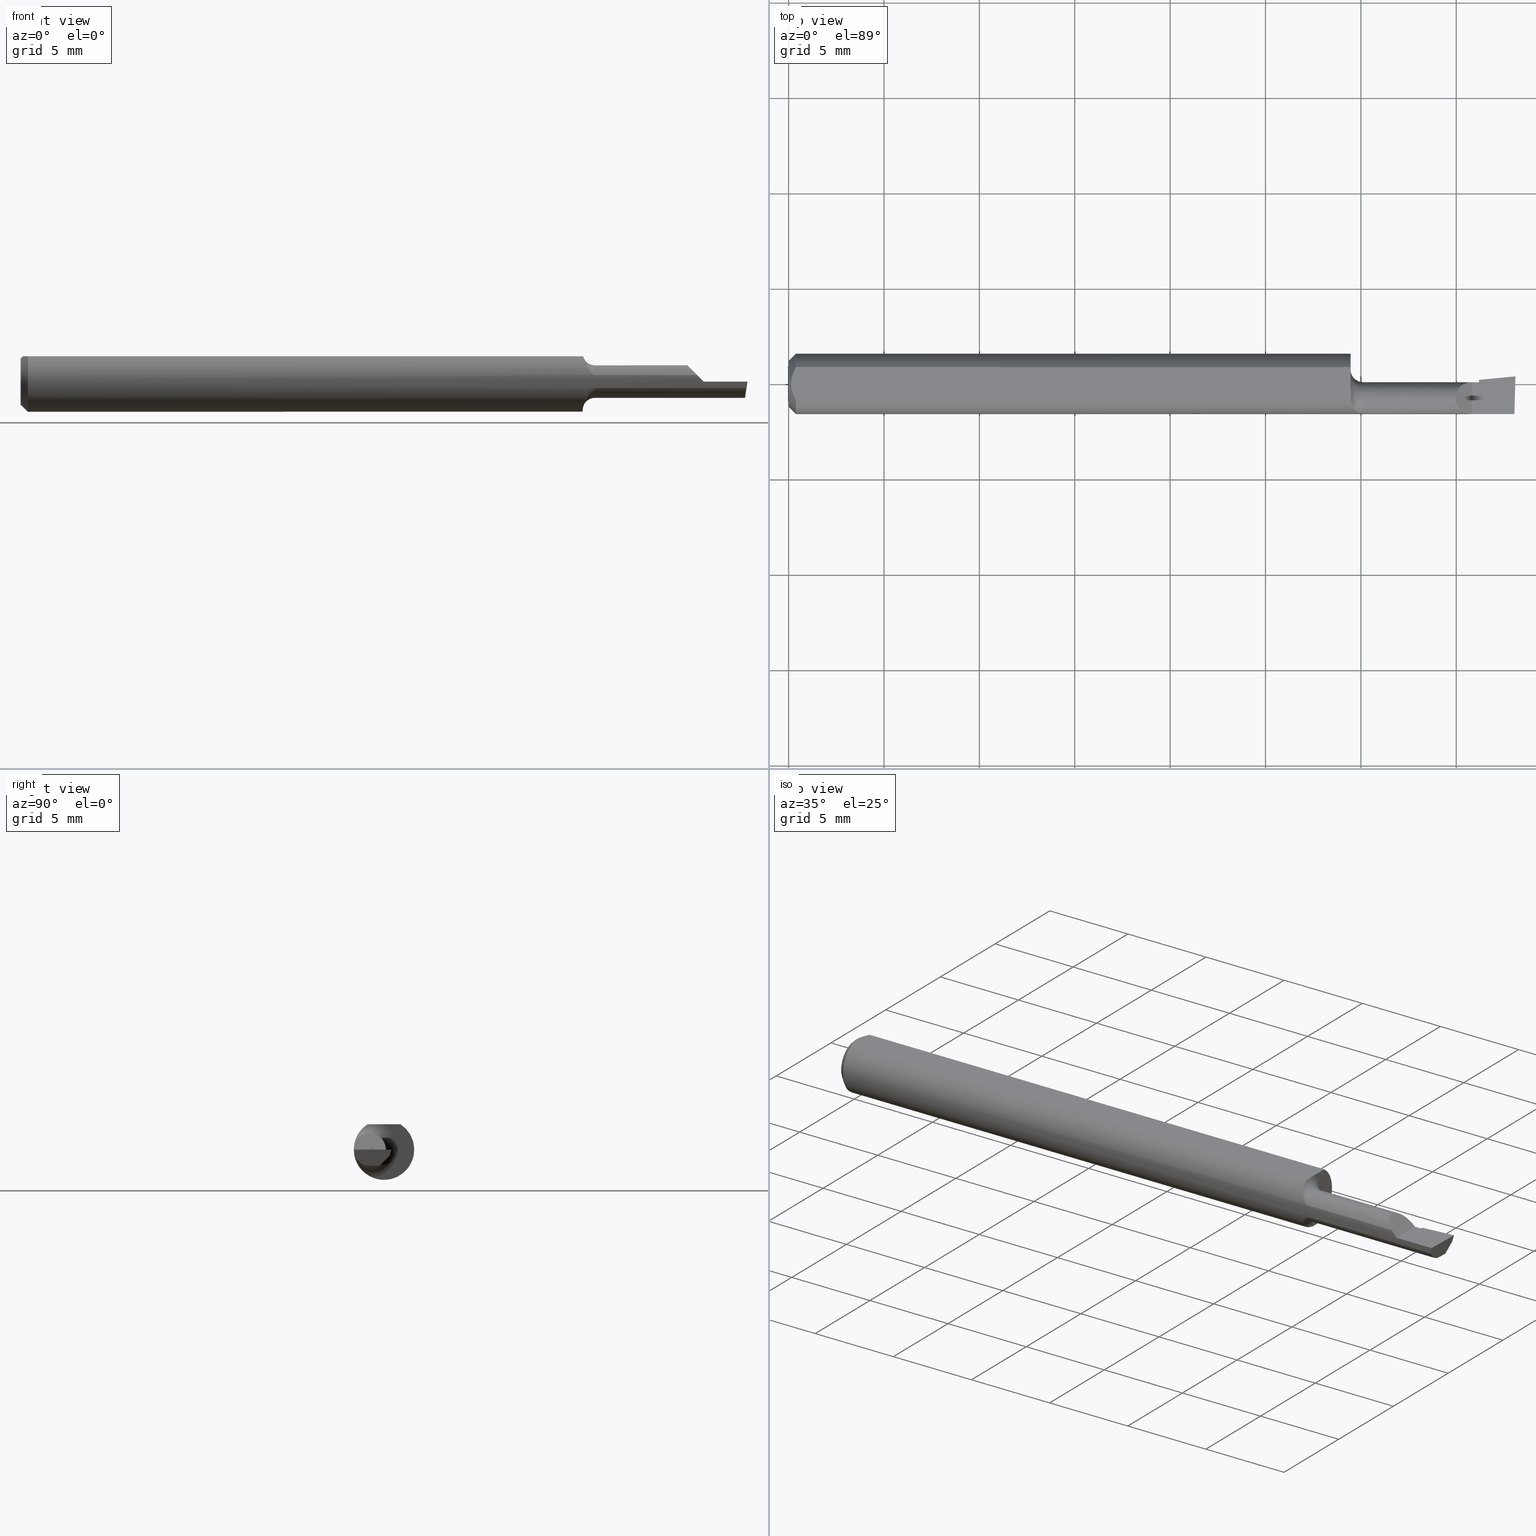
[diagram: canonical four-view strip — front | top / right | iso, engineering-drawing reading convention]
A machine part, canonical four-view strip (front | top / right | iso — engineering-drawing reading convention). The complete STEP part file that produces these views, byte-faithful:
ISO-10303-21;
HEADER;
FILE_DESCRIPTION (( 'STEP AP214' ),
    '1' );
FILE_NAME ('B080300.STEP',
    '2019-07-25T16:56:34',
    ( '' ),
    ( '' ),
    'SwSTEP 2.0',
    'SolidWorks 2018',
    '' );
FILE_SCHEMA (( 'AUTOMOTIVE_DESIGN' ));
ENDSEC;

DATA;
#1 = CARTESIAN_POINT ( 'NONE',  ( 1.494308349198229857, -0.04386801266094333962, -0.03364999999999998548 ) ) ;
#2 = CIRCLE ( 'NONE', #25, 0.06235000000000000264 ) ;
#3 = CARTESIAN_POINT ( 'NONE',  ( 1.500000000000000444, -0.02999999999999999889, -0.03365000000000000629 ) ) ;
#4 = CARTESIAN_POINT ( 'NONE',  ( 0.004999999999999268051, 0.005945714695019511074, 0.05235000000000000070 ) ) ;
#5 = CARTESIAN_POINT ( 'NONE',  ( 1.353543612694569021, -0.04237893387051760996, 0.05645638730543046241 ) ) ;
#6 = VERTEX_POINT ( 'NONE', #537 ) ;
#7 = DIRECTION ( 'NONE',  ( -2.845674993400274186E-18, -1.000000000000000000, 0.0000000000000000000 ) ) ;
#8 = CARTESIAN_POINT ( 'NONE',  ( 1.409999999999999920, -0.06235000000000005121, 1.102182119232617911E-17 ) ) ;
#9 = EDGE_LOOP ( 'NONE', ( #46, #491, #150, #515 ) ) ;
#10 = ORIENTED_EDGE ( 'NONE', *, *, #158, .T. ) ;
#11 = CARTESIAN_POINT ( 'NONE',  ( 1.305000000000000160, -0.06092000000000000887, 0.01327690099383130144 ) ) ;
#12 = CARTESIAN_POINT ( 'NONE',  ( 1.409999999999999920, -0.06235000000000005121, 1.102182119232617911E-17 ) ) ;
#13 = EDGE_CURVE ( 'NONE', #6, #77, #555, .T. ) ;
#14 = DIRECTION ( 'NONE',  ( 0.0000000000000000000, 0.0000000000000000000, 1.000000000000000000 ) ) ;
#15 = EDGE_LOOP ( 'NONE', ( #380, #215, #108, #413, #151 ) ) ;
#16 = LINE ( 'NONE', #90, #44 ) ;
#17 = B_SPLINE_CURVE_WITH_KNOTS ( 'NONE', 3,
 ( #121, #205, #505, #247, #346, #292, #565, #252, #386, #341, #26, #469, #156, #383 ),
 .UNSPECIFIED., .F., .F.,
 ( 4, 2, 2, 2, 2, 2, 4 ),
 ( 1.965909345844058709E-07, 0.0001114396223726220005, 0.0002226826538106595904, 0.0004451687166867345532, 0.0008901408424388843705, 0.001335112968191033917, 0.001780085093943183788 ),
 .UNSPECIFIED. ) ;
#18 = EDGE_LOOP ( 'NONE', ( #248, #474, #297, #28, #260, #115, #554, #278 ) ) ;
#19 = CARTESIAN_POINT ( 'NONE',  ( 1.180680476387446554, -0.06051938329563263941, 0.01501179429902413029 ) ) ;
#20 = EDGE_CURVE ( 'NONE', #418, #94, #332, .T. ) ;
#21 = ADVANCED_FACE ( 'NONE', ( #182 ), #522, .T. ) ;
#22 =( NAMED_UNIT ( * ) PLANE_ANGLE_UNIT ( ) SI_UNIT ( $, .RADIAN. ) );
#23 = VECTOR ( 'NONE', #494, 39.37007874015748143 ) ;
#24 = CARTESIAN_POINT ( 'NONE',  ( 1.421744639163020851, 0.004121984496277333009, -0.01299999999999999767 ) ) ;
#25 = AXIS2_PLACEMENT_3D ( 'NONE', #93, #449, #232 ) ;
#26 = CARTESIAN_POINT ( 'NONE',  ( 1.162355689262079883, -0.04203237437577732327, -0.04640179157007805200 ) ) ;
#27 = CARTESIAN_POINT ( 'NONE',  ( 1.185000000000000275, -0.06092000000000005050, 0.01327690099383117134 ) ) ;
#28 = ORIENTED_EDGE ( 'NONE', *, *, #80, .T. ) ;
#29 = DIMENSIONAL_EXPONENTS ( 1.000000000000000000, 0.0000000000000000000, 0.0000000000000000000, 0.0000000000000000000, 0.0000000000000000000, 0.0000000000000000000, 0.0000000000000000000 ) ;
#30 = CARTESIAN_POINT ( 'NONE',  ( 1.185000000000000275, -0.06092000000000005744, -0.01327690099383113838 ) ) ;
#31 = CARTESIAN_POINT ( 'NONE',  ( 0.0000000000000000000, 0.0000000000000000000, 0.0000000000000000000 ) ) ;
#32 = VERTEX_POINT ( 'NONE', #301 ) ;
#33 = CARTESIAN_POINT ( 'NONE',  ( 1.500000000000000222, 0.1123499999999999915, 0.05234999999999998682 ) ) ;
#34 = CARTESIAN_POINT ( 'NONE',  ( 0.01500000000000000465, 0.0000000000000000000, 0.0000000000000000000 ) ) ;
#35 = DIRECTION ( 'NONE',  ( -2.845674993400274571E-18, -1.000000000000000000, 7.598598113218357399E-17 ) ) ;
#36 = VERTEX_POINT ( 'NONE', #30 ) ;
#37 = AXIS2_PLACEMENT_3D ( 'NONE', #268, #408, #234 ) ;
#38 = AXIS2_PLACEMENT_3D ( 'NONE', #31, #123, #168 ) ;
#39 = DIRECTION ( 'NONE',  ( -1.000000000000000000, 2.845674993400274571E-18, -0.0000000000000000000 ) ) ;
#40 = DIRECTION ( 'NONE',  ( -1.000000000000000000, -0.0000000000000000000, -0.0000000000000000000 ) ) ;
#41 = PLANE ( 'NONE',  #312 ) ;
#42 = EDGE_LOOP ( 'NONE', ( #355, #566, #97, #375, #185, #43, #99, #438, #389, #58, #288, #547 ) ) ;
#43 = ORIENTED_EDGE ( 'NONE', *, *, #498, .F. ) ;
#44 = VECTOR ( 'NONE', #88, 39.37007874015748854 ) ;
#45 = CARTESIAN_POINT ( 'NONE',  ( 1.500000000000000222, -0.2500000000000000555, 0.0000000000000000000 ) ) ;
#46 = ORIENTED_EDGE ( 'NONE', *, *, #251, .T. ) ;
#47 = EDGE_CURVE ( 'NONE', #94, #418, #371, .T. ) ;
#48 = DIRECTION ( 'NONE',  ( -1.000000000000000000, 2.845674993400274571E-18, -0.0000000000000000000 ) ) ;
#49 = PLANE ( 'NONE',  #424 ) ;
#50 = VECTOR ( 'NONE', #189, 39.37007874015748143 ) ;
#51 = CARTESIAN_POINT ( 'NONE',  ( 0.01500000000000185213, -0.03386738844380016850, 0.05235000000000000070 ) ) ;
#52 = EDGE_CURVE ( 'NONE', #331, #169, #419, .T. ) ;
#53 = CARTESIAN_POINT ( 'NONE',  ( 1.425000000000000266, -0.02999999999999999889, -0.03365000000000000629 ) ) ;
#54 = LINE ( 'NONE', #513, #510 ) ;
#55 = AXIS2_PLACEMENT_3D ( 'NONE', #140, #104, #14 ) ;
#56 = LENGTH_MEASURE_WITH_UNIT ( LENGTH_MEASURE( 0.02539999999999999897 ), #293 );
#57 = CARTESIAN_POINT ( 'NONE',  ( 0.0000000000000000000, 0.0000000000000000000, -0.04734999999999965625 ) ) ;
#58 = ORIENTED_EDGE ( 'NONE', *, *, #372, .T. ) ;
#59 = ORIENTED_EDGE ( 'NONE', *, *, #13, .T. ) ;
#60 = LINE ( 'NONE', #179, #110 ) ;
#61 = VERTEX_POINT ( 'NONE', #481 ) ;
#62 = VERTEX_POINT ( 'NONE', #478 ) ;
#63 = VERTEX_POINT ( 'NONE', #217 ) ;
#64 = CARTESIAN_POINT ( 'NONE',  ( 1.182669914596958582, -0.06082078945086086263, 0.01373977049058549074 ) ) ;
#65 = ADVANCED_FACE ( 'NONE', ( #428 ), #445, .T. ) ;
#66 = VERTEX_POINT ( 'NONE', #219 ) ;
#67 = EDGE_CURVE ( 'NONE', #77, #331, #517, .T. ) ;
#68 = VECTOR ( 'NONE', #141, 39.37007874015748143 ) ;
#69 = DIRECTION ( 'NONE',  ( 0.06894566448119619773, -0.7160281025913034503, 0.6946583704589934793 ) ) ;
#70 = PLANE ( 'NONE',  #89 ) ;
#71 = ORIENTED_EDGE ( 'NONE', *, *, #421, .F. ) ;
#72 = AXIS2_PLACEMENT_3D ( 'NONE', #429, #516, #468 ) ;
#73 = ORIENTED_EDGE ( 'NONE', *, *, #193, .T. ) ;
#74 = DIRECTION ( 'NONE',  ( 2.845674993400274571E-18, 1.000000000000000000, -3.484946772081307763E-34 ) ) ;
#75 = CARTESIAN_POINT ( 'NONE',  ( 1.179807319243624031, -0.06032049651225027120, 0.01580211994234508727 ) ) ;
#76 = LINE ( 'NONE', #277, #417 ) ;
#77 = VERTEX_POINT ( 'NONE', #279 ) ;
#78 = FILL_AREA_STYLE ('',( #329 ) ) ;
#79 = DIRECTION ( 'NONE',  ( 0.0000000000000000000, 0.0000000000000000000, 1.000000000000000000 ) ) ;
#80 = EDGE_CURVE ( 'NONE', #502, #181, #401, .T. ) ;
#81 = DIRECTION ( 'NONE',  ( 0.0000000000000000000, 0.0000000000000000000, -1.000000000000000000 ) ) ;
#82 = CARTESIAN_POINT ( 'NONE',  ( 1.160303160474311257, -0.01365768250280463558, 0.05235000000000000764 ) ) ;
#83 = CARTESIAN_POINT ( 'NONE',  ( 0.0000000000000000000, 6.717187693324806899E-18, 0.04734999999999965625 ) ) ;
#84 = VERTEX_POINT ( 'NONE', #373 ) ;
#85 = VECTOR ( 'NONE', #35, 39.37007874015748143 ) ;
#86 = UNCERTAINTY_MEASURE_WITH_UNIT (LENGTH_MEASURE( 1.000000000000000082E-05 ), #568, 'distance_accuracy_value', 'NONE');
#87 = EDGE_CURVE ( 'NONE', #6, #66, #535, .T. ) ;
#88 = DIRECTION ( 'NONE',  ( 0.9953961983671800740, 0.09584575252021028391, 1.058492079198500478E-18 ) ) ;
#89 = AXIS2_PLACEMENT_3D ( 'NONE', #24, #69, #422 ) ;
#90 = CARTESIAN_POINT ( 'NONE',  ( 1.497937029019752453, -0.008575227205320924695, -0.03365000000000000629 ) ) ;
#91 = VERTEX_POINT ( 'NONE', #369 ) ;
#92 = VERTEX_POINT ( 'NONE', #109 ) ;
#93 = CARTESIAN_POINT ( 'NONE',  ( 1.160000000000000142, 0.0000000000000000000, 0.0000000000000000000 ) ) ;
#94 = VERTEX_POINT ( 'NONE', #57 ) ;
#95 = FACE_OUTER_BOUND ( 'NONE', #15, .T. ) ;
#96 = DIRECTION ( 'NONE',  ( 0.9953961983671800740, 0.09584575252021028391, -0.0000000000000000000 ) ) ;
#97 = ORIENTED_EDGE ( 'NONE', *, *, #545, .T. ) ;
#98 = DIRECTION ( 'NONE',  ( -0.1053106618242657666, -0.6976485211320151425, -0.7086580314005108683 ) ) ;
#99 = ORIENTED_EDGE ( 'NONE', *, *, #67, .T. ) ;
#100 = PLANE ( 'NONE',  #581 ) ;
#101 = CARTESIAN_POINT ( 'NONE',  ( 0.01500000000000000465, 0.0000000000000000000, -0.06235000000000000264 ) ) ;
#102 = LINE ( 'NONE', #188, #68 ) ;
#103 = CARTESIAN_POINT ( 'NONE',  ( 1.305000000000000160, -0.06092000000000000887, -0.01327690099383130144 ) ) ;
#104 = DIRECTION ( 'NONE',  ( -1.000000000000000000, -0.0000000000000000000, -0.0000000000000000000 ) ) ;
#105 = AXIS2_PLACEMENT_3D ( 'NONE', #541, #276, #7 ) ;
#106 = EDGE_CURVE ( 'NONE', #387, #61, #316, .T. ) ;
#107 = ORIENTED_EDGE ( 'NONE', *, *, #20, .F. ) ;
#108 = ORIENTED_EDGE ( 'NONE', *, *, #366, .T. ) ;
#109 = CARTESIAN_POINT ( 'NONE',  ( 0.01500000000000000465, 0.0000000000000000000, -0.06235000000000000264 ) ) ;
#110 = VECTOR ( 'NONE', #132, 39.37007874015748854 ) ;
#111 = EDGE_CURVE ( 'NONE', #406, #62, #196, .T. ) ;
#112 = PLANE ( 'NONE',  #72 ) ;
#113 = EDGE_CURVE ( 'NONE', #536, #36, #267, .T. ) ;
#114 = SURFACE_SIDE_STYLE ('',( #231 ) ) ;
#115 = ORIENTED_EDGE ( 'NONE', *, *, #225, .T. ) ;
#116 =( NAMED_UNIT ( * ) SI_UNIT ( $, .STERADIAN. ) SOLID_ANGLE_UNIT ( ) );
#117 = FACE_OUTER_BOUND ( 'NONE', #209, .T. ) ;
#118 = ADVANCED_FACE ( 'NONE', ( #253, #242 ), #343, .T. ) ;
#119 = PRESENTATION_LAYER_ASSIGNMENT (  '', '', ( #550 ) ) ;
#120 = VECTOR ( 'NONE', #230, 39.37007874015748143 ) ;
#121 = CARTESIAN_POINT ( 'NONE',  ( 1.185000000000000275, -0.06092000000000005744, -0.01327690099383113838 ) ) ;
#122 = ADVANCED_FACE ( 'NONE', ( #117 ), #100, .T. ) ;
#123 = DIRECTION ( 'NONE',  ( -1.000000000000000000, -0.0000000000000000000, -0.0000000000000000000 ) ) ;
#124 = CARTESIAN_POINT ( 'NONE',  ( 0.01500000000000000465, 0.0000000000000000000, 0.0000000000000000000 ) ) ;
#125 = APPLICATION_CONTEXT ( 'automotive_design' ) ;
#126 = EDGE_CURVE ( 'NONE', #61, #91, #458, .T. ) ;
#127 = PLANE ( 'NONE',  #295 ) ;
#128 = ORIENTED_EDGE ( 'NONE', *, *, #285, .F. ) ;
#129 = AXIS2_PLACEMENT_3D ( 'NONE', #34, #170, #304 ) ;
#130 = CARTESIAN_POINT ( 'NONE',  ( 0.0000000000000000000, 0.0000000000000000000, 0.0000000000000000000 ) ) ;
#131 = EDGE_LOOP ( 'NONE', ( #392, #572, #524, #553, #154, #226 ) ) ;
#132 = DIRECTION ( 'NONE',  ( 8.355118786175324576E-19, 0.2936076258024061802, 0.9559260233253795702 ) ) ;
#133 = AXIS2_PLACEMENT_3D ( 'NONE', #33, #384, #390 ) ;
#134 = CARTESIAN_POINT ( 'NONE',  ( 9.575696352794167519E-20, 0.003649999999999986155, 1.836970198721026976E-16 ) ) ;
#135 = DIRECTION ( 'NONE',  ( -2.845674993400274571E-18, -1.000000000000000000, 0.0000000000000000000 ) ) ;
#136 = CARTESIAN_POINT ( 'NONE',  ( 0.0000000000000000000, 0.03386738844375223462, 0.05234999999999997988 ) ) ;
#137 = EDGE_CURVE ( 'NONE', #406, #416, #210, .T. ) ;
#138 = ORIENTED_EDGE ( 'NONE', *, *, #455, .T. ) ;
#139 = DIRECTION ( 'NONE',  ( -1.000000000000000000, 2.845674993400274571E-18, -0.0000000000000000000 ) ) ;
#140 = CARTESIAN_POINT ( 'NONE',  ( 0.0000000000000000000, 0.0000000000000000000, 0.0000000000000000000 ) ) ;
#141 = DIRECTION ( 'NONE',  ( -1.000000000000000000, 5.691349986800550683E-18, -0.0000000000000000000 ) ) ;
#142 = ORIENTED_EDGE ( 'NONE', *, *, #143, .T. ) ;
#143 = EDGE_CURVE ( 'NONE', #418, #169, #243, .T. ) ;
#144 = VECTOR ( 'NONE', #48, 39.37007874015748143 ) ;
#145 = CARTESIAN_POINT ( 'NONE',  ( 0.0000000000000000000, -0.03386738844375222768, 0.05234999999999997988 ) ) ;
#146 = AXIS2_PLACEMENT_3D ( 'NONE', #434, #39, #310 ) ;
#147 = LENGTH_MEASURE_WITH_UNIT ( LENGTH_MEASURE( 0.02539999999999999897 ), #577 );
#148 = MECHANICAL_DESIGN_GEOMETRIC_PRESENTATION_REPRESENTATION (  '', ( #550 ), #157 ) ;
#149 = B_SPLINE_CURVE_WITH_KNOTS ( 'NONE', 3,
 ( #321, #4, #576, #530, #466, #560 ),
 .UNSPECIFIED., .F., .F.,
 ( 4, 2, 4 ),
 ( 0.003037199019464981685, 0.003488061124369676216, 0.003938923229274370746 ),
 .UNSPECIFIED. ) ;
#150 = ORIENTED_EDGE ( 'NONE', *, *, #202, .F. ) ;
#151 = ORIENTED_EDGE ( 'NONE', *, *, #52, .T. ) ;
#152 = CIRCLE ( 'NONE', #37, 0.03364999999999999936 ) ;
#153 = EDGE_CURVE ( 'NONE', #169, #84, #149, .T. ) ;
#154 = ORIENTED_EDGE ( 'NONE', *, *, #52, .F. ) ;
#155 = ORIENTED_EDGE ( 'NONE', *, *, #251, .F. ) ;
#156 = CARTESIAN_POINT ( 'NONE',  ( 1.160000000000000142, -0.02789725500421538773, -0.05606440581369925152 ) ) ;
#157 =( GEOMETRIC_REPRESENTATION_CONTEXT ( 3 ) GLOBAL_UNCERTAINTY_ASSIGNED_CONTEXT ( ( #543 ) ) GLOBAL_UNIT_ASSIGNED_CONTEXT ( ( #483, #528, #475 ) ) REPRESENTATION_CONTEXT ( 'NONE', 'WORKASPACE' ) );
#158 = EDGE_CURVE ( 'NONE', #502, #36, #289, .T. ) ;
#159 = CARTESIAN_POINT ( 'NONE',  ( 1.409999999999999920, -0.2500000000000000555, 1.102182119232617911E-17 ) ) ;
#160 = CARTESIAN_POINT ( 'NONE',  ( 1.172102256738829951, -0.05694092632992445863, 0.02571027090688619149 ) ) ;
#161 =( NAMED_UNIT ( * ) SI_UNIT ( $, .STERADIAN. ) SOLID_ANGLE_UNIT ( ) );
#162 = SHAPE_DEFINITION_REPRESENTATION ( #574, #314 ) ;
#163 = VERTEX_POINT ( 'NONE', #323 ) ;
#164 = ADVANCED_FACE ( 'NONE', ( #95 ), #166, .T. ) ;
#165 = SURFACE_STYLE_USAGE ( .BOTH. , #521 ) ;
#166 = CONICAL_SURFACE ( 'NONE', #559, 0.06235000000000000264, 0.7853981633974594923 ) ;
#167 = DIRECTION ( 'NONE',  ( -1.000000000000000000, -0.0000000000000000000, -0.0000000000000000000 ) ) ;
#168 = DIRECTION ( 'NONE',  ( 0.0000000000000000000, 0.0000000000000000000, 1.000000000000000000 ) ) ;
#169 = VERTEX_POINT ( 'NONE', #284 ) ;
#170 = DIRECTION ( 'NONE',  ( 1.000000000000000000, 0.0000000000000000000, 0.0000000000000000000 ) ) ;
#171 =( BOUNDED_CURVE ( )  B_SPLINE_CURVE ( 3, ( #493, #397, #1, #273 ),
 .UNSPECIFIED., .F., .T. ) 
 B_SPLINE_CURVE_WITH_KNOTS ( ( 4, 4 ),
 ( 5.328025986651551804, 6.493234751460233767 ),
 .UNSPECIFIED. ) 
 CURVE ( )  GEOMETRIC_REPRESENTATION_ITEM ( )  RATIONAL_B_SPLINE_CURVE ( ( 1.000000000000000000, 0.8900217005663151326, 0.8900217005663151326, 1.000000000000000000 ) ) 
 REPRESENTATION_ITEM ( '' )  );
#172 = PRODUCT_DEFINITION_CONTEXT ( 'detailed design', #125, 'design' ) ;
#173 = AXIS2_PLACEMENT_3D ( 'NONE', #529, #265, #578 ) ;
#174 = CARTESIAN_POINT ( 'NONE',  ( 1.425000000000000266, -0.2500000000000000555, 9.184850993605122553E-18 ) ) ;
#175 = CARTESIAN_POINT ( 'NONE',  ( 1.160770118751884405, -0.03386738844373782253, 0.05235000000000000070 ) ) ;
#176 = EDGE_CURVE ( 'NONE', #315, #181, #393, .T. ) ;
#177 = FACE_OUTER_BOUND ( 'NONE', #9, .T. ) ;
#178 = CARTESIAN_POINT ( 'NONE',  ( 1.409999999999999920, 0.003649999999999939317, 1.102182119232617911E-17 ) ) ;
#179 = CARTESIAN_POINT ( 'NONE',  ( 1.425000000000000266, 0.009204170326549406672, 0.002526004531361403758 ) ) ;
#180 = VECTOR ( 'NONE', #562, 39.37007874015748143 ) ;
#181 = VERTEX_POINT ( 'NONE', #183 ) ;
#182 = FACE_OUTER_BOUND ( 'NONE', #240, .T. ) ;
#183 = CARTESIAN_POINT ( 'NONE',  ( 1.396723099006168534, -0.06092000000000002274, 0.01327690099383125981 ) ) ;
#184 = FACE_OUTER_BOUND ( 'NONE', #194, .T. ) ;
#185 = ORIENTED_EDGE ( 'NONE', *, *, #80, .F. ) ;
#186 = EDGE_LOOP ( 'NONE', ( #235, #290, #59, #238, #10 ) ) ;
#187 = CARTESIAN_POINT ( 'NONE',  ( 1.425000000000000266, -0.02999999999999999889, -0.03365000000000000629 ) ) ;
#188 = CARTESIAN_POINT ( 'NONE',  ( 1.500000000000000444, -0.02999999999999999889, -0.03365000000000000629 ) ) ;
#189 = DIRECTION ( 'NONE',  ( -0.9953961983671800740, -0.09584575252021024228, 1.242092384877204037E-16 ) ) ;
#190 = DIRECTION ( 'NONE',  ( 0.7071067811865395791, 0.0000000000000000000, -0.7071067811865554553 ) ) ;
#191 =( BOUNDED_CURVE ( )  B_SPLINE_CURVE ( 3, ( #368, #237, #365, #280 ),
 .UNSPECIFIED., .F., .F. ) 
 B_SPLINE_CURVE_WITH_KNOTS ( ( 4, 4 ),
 ( 3.087527693676604734, 3.186434404596866443 ),
 .UNSPECIFIED. ) 
 CURVE ( )  GEOMETRIC_REPRESENTATION_ITEM ( )  RATIONAL_B_SPLINE_CURVE ( ( 1.000000000000000000, 0.9991849546734636878, 0.9991849546734636878, 1.000000000000000000 ) ) 
 REPRESENTATION_ITEM ( '' )  );
#192 = AXIS2_PLACEMENT_3D ( 'NONE', #322, #358, #488 ) ;
#193 = EDGE_CURVE ( 'NONE', #540, #163, #345, .T. ) ;
#194 = EDGE_LOOP ( 'NONE', ( #381, #73, #564, #340 ) ) ;
#195 = PRODUCT ( 'B080300', 'B080300', '', ( #480 ) ) ;
#196 = LINE ( 'NONE', #233, #298 ) ;
#197 =( GEOMETRIC_REPRESENTATION_CONTEXT ( 3 ) GLOBAL_UNCERTAINTY_ASSIGNED_CONTEXT ( ( #436 ) ) GLOBAL_UNIT_ASSIGNED_CONTEXT ( ( #427, #22, #161 ) ) REPRESENTATION_CONTEXT ( 'NONE', 'WORKASPACE' ) );
#198 =( BOUNDED_CURVE ( )  B_SPLINE_CURVE ( 3, ( #526, #349, #213, #300 ),
 .UNSPECIFIED., .F., .T. ) 
 B_SPLINE_CURVE_WITH_KNOTS ( ( 4, 4 ),
 ( 1.146162383294268894, 1.360746882514248135 ),
 .UNSPECIFIED. ) 
 CURVE ( )  GEOMETRIC_REPRESENTATION_ITEM ( )  RATIONAL_B_SPLINE_CURVE ( ( 1.000000000000000000, 0.9961664706887894960, 0.9961664706887894960, 1.000000000000000000 ) ) 
 REPRESENTATION_ITEM ( '' )  );
#199 = VECTOR ( 'NONE', #451, 39.37007874015748143 ) ;
#200 = B_SPLINE_CURVE_WITH_KNOTS ( 'NONE', 3,
 ( #175, #222, #259, #336, #374, #511, #160, #425, #250, #75, #19, #64, #471, #208 ),
 .UNSPECIFIED., .F., .F.,
 ( 4, 2, 2, 2, 2, 2, 4 ),
 ( 3.657393739027581265E-07, 0.0003570510026825774613, 0.0007137362659912521072, 0.001070421529299927241, 0.001248764160954264754, 0.001337935476781433293, 0.001427106792608602267 ),
 .UNSPECIFIED. ) ;
#201 = VERTEX_POINT ( 'NONE', #448 ) ;
#202 = EDGE_CURVE ( 'NONE', #61, #540, #16, .T. ) ;
#203 = CARTESIAN_POINT ( 'NONE',  ( 0.0000000000000000000, 0.0000000000000000000, 0.0000000000000000000 ) ) ;
#204 = LINE ( 'NONE', #573, #85 ) ;
#205 = CARTESIAN_POINT ( 'NONE',  ( 1.183515031386487504, -0.06092000000000005050, -0.01327690099383113491 ) ) ;
#206 = APPLICATION_PROTOCOL_DEFINITION ( 'draft international standard', 'automotive_design', 1998, #508 ) ;
#207 = EDGE_LOOP ( 'NONE', ( #461, #546 ) ) ;
#208 = CARTESIAN_POINT ( 'NONE',  ( 1.185000000000000275, -0.06092000000000005050, 0.01327690099383117134 ) ) ;
#209 = EDGE_LOOP ( 'NONE', ( #462, #348, #128, #245, #500 ) ) ;
#210 = LINE ( 'NONE', #364, #50 ) ;
#211 = ORIENTED_EDGE ( 'NONE', *, *, #391, .T. ) ;
#212 = LINE ( 'NONE', #101, #299 ) ;
#213 = CARTESIAN_POINT ( 'NONE',  ( 1.497408664532471789, -0.06235000000000000958, -0.004468359128689331633 ) ) ;
#214 = CARTESIAN_POINT ( 'NONE',  ( 0.01500000000000185213, -0.03386738844380016850, 0.05235000000000000070 ) ) ;
#215 = ORIENTED_EDGE ( 'NONE', *, *, #47, .F. ) ;
#216 = DIRECTION ( 'NONE',  ( 0.0000000000000000000, 0.0000000000000000000, 1.000000000000000000 ) ) ;
#217 = CARTESIAN_POINT ( 'NONE',  ( 1.409999999999999920, 0.003649999999999939317, 1.102182119232617911E-17 ) ) ;
#218 = CARTESIAN_POINT ( 'NONE',  ( 0.01500000000000000465, 0.0000000000000000000, 0.0000000000000000000 ) ) ;
#219 = CARTESIAN_POINT ( 'NONE',  ( 1.160000000000000142, -0.02246166666666673736, -0.05816352835373343050 ) ) ;
#220 = FACE_OUTER_BOUND ( 'NONE', #186, .T. ) ;
#221 = CARTESIAN_POINT ( 'NONE',  ( 1.160864870788666181, -0.02880649294741972899, 0.05235000000000000070 ) ) ;
#222 = CARTESIAN_POINT ( 'NONE',  ( 1.161344833552323541, -0.03782458604559962856, 0.04978992457821582868 ) ) ;
#223 = DIRECTION ( 'NONE',  ( 0.0000000000000000000, 0.0000000000000000000, 1.000000000000000000 ) ) ;
#224 = CARTESIAN_POINT ( 'NONE',  ( 1.160746490741564108, -0.02375524936241532603, 0.05235000000000000764 ) ) ;
#225 = EDGE_CURVE ( 'NONE', #63, #32, #472, .T. ) ;
#226 = ORIENTED_EDGE ( 'NONE', *, *, #67, .F. ) ;
#227 = DIRECTION ( 'NONE',  ( 0.02617694830794552521, 0.9996573249755553725, -3.158139334232501587E-18 ) ) ;
#228 = VECTOR ( 'NONE', #407, 39.37007874015748143 ) ;
#229 = FACE_OUTER_BOUND ( 'NONE', #257, .T. ) ;
#230 = DIRECTION ( 'NONE',  ( -0.02617694830794552521, -0.9996573249755553725, -2.144436937150365658E-17 ) ) ;
#231 = SURFACE_STYLE_FILL_AREA ( #379 ) ;
#232 = DIRECTION ( 'NONE',  ( 0.0000000000000000000, 1.000000000000000000, 0.0000000000000000000 ) ) ;
#233 = CARTESIAN_POINT ( 'NONE',  ( 1.498507078272894200, 0.01201126422912053224, -0.01137894806700399594 ) ) ;
#234 = DIRECTION ( 'NONE',  ( 0.0000000000000000000, -1.000000000000000000, 0.0000000000000000000 ) ) ;
#235 = ORIENTED_EDGE ( 'NONE', *, *, #561, .T. ) ;
#236 = EDGE_CURVE ( 'NONE', #536, #163, #171, .T. ) ;
#237 = CARTESIAN_POINT ( 'NONE',  ( 1.423453955186838593, -0.005345927311154197344, -0.02292882422404297557 ) ) ;
#238 = ORIENTED_EDGE ( 'NONE', *, *, #498, .T. ) ;
#239 = CARTESIAN_POINT ( 'NONE',  ( 1.421363700328992952, 0.008078185550903291615, 0.0000000000000000000 ) ) ;
#240 = EDGE_LOOP ( 'NONE', ( #414, #138, #507 ) ) ;
#241 = DIRECTION ( 'NONE',  ( -1.000000000000000000, -0.0000000000000000000, -0.0000000000000000000 ) ) ;
#242 = FACE_BOUND ( 'NONE', #344, .T. ) ;
#243 = LINE ( 'NONE', #308, #318 ) ;
#244 = CIRCLE ( 'NONE', #512, 0.06235000000000000264 ) ;
#245 = ORIENTED_EDGE ( 'NONE', *, *, #467, .T. ) ;
#246 = ADVANCED_FACE ( 'NONE', ( #229 ), #403, .F. ) ;
#247 = CARTESIAN_POINT ( 'NONE',  ( 1.179828686665877369, -0.06034170405075479915, -0.01572293840682440977 ) ) ;
#248 = ORIENTED_EDGE ( 'NONE', *, *, #236, .F. ) ;
#249 = ADVANCED_FACE ( 'NONE', ( #184 ), #41, .F. ) ;
#250 = CARTESIAN_POINT ( 'NONE',  ( 1.177368540304127853, -0.05962881332384150496, 0.01830066387367085268 ) ) ;
#251 = EDGE_CURVE ( 'NONE', #91, #62, #361, .T. ) ;
#252 = CARTESIAN_POINT ( 'NONE',  ( 1.170064578917327847, -0.05535262368619131568, -0.02912723828542092969 ) ) ;
#253 = FACE_OUTER_BOUND ( 'NONE', #18, .T. ) ;
#254 = CARTESIAN_POINT ( 'NONE',  ( 1.495225686884720906, -0.008836299758840987159, -0.03365000000000000629 ) ) ;
#255 = SURFACE_STYLE_USAGE ( .BOTH. , #114 ) ;
#256 = CARTESIAN_POINT ( 'NONE',  ( 1.422660134122533782, -0.005345630279323854497, -0.02292848294241282142 ) ) ;
#257 = EDGE_LOOP ( 'NONE', ( #519, #504, #579 ) ) ;
#258 = CARTESIAN_POINT ( 'NONE',  ( 0.01216137397042175820, -0.02864146636719541034, 0.05235000000000000070 ) ) ;
#259 = CARTESIAN_POINT ( 'NONE',  ( 1.162228576699353644, -0.04137438227418509251, 0.04686461655001721710 ) ) ;
#260 = ORIENTED_EDGE ( 'NONE', *, *, #281, .T. ) ;
#261 = PLANE ( 'NONE',  #133 ) ;
#262 = VERTEX_POINT ( 'NONE', #443 ) ;
#263 = EDGE_CURVE ( 'NONE', #66, #457, #2, .T. ) ;
#264 = DIRECTION ( 'NONE',  ( 0.06894566448119619773, -0.7160281025913034503, 0.6946583704589934793 ) ) ;
#265 = DIRECTION ( 'NONE',  ( 1.000000000000000000, -2.845674993400274571E-18, 0.0000000000000000000 ) ) ;
#266 = EDGE_CURVE ( 'NONE', #62, #540, #76, .T. ) ;
#267 = LINE ( 'NONE', #103, #144 ) ;
#268 = CARTESIAN_POINT ( 'NONE',  ( 1.425000000000000266, -0.02999999999999999889, 0.0000000000000000000 ) ) ;
#269 =( GEOMETRIC_REPRESENTATION_CONTEXT ( 3 ) GLOBAL_UNCERTAINTY_ASSIGNED_CONTEXT ( ( #86 ) ) GLOBAL_UNIT_ASSIGNED_CONTEXT ( ( #568, #563, #116 ) ) REPRESENTATION_CONTEXT ( 'NONE', 'WORKASPACE' ) );
#270 = SURFACE_STYLE_FILL_AREA ( #78 ) ;
#271 = CARTESIAN_POINT ( 'NONE',  ( 1.401088976121160679, -0.06187149898566945971, 0.008911023878839281417 ) ) ;
#272 = CARTESIAN_POINT ( 'NONE',  ( 1.160000000000000586, -0.008611455327202394150, 0.05235000000000001458 ) ) ;
#273 = CARTESIAN_POINT ( 'NONE',  ( 1.494671495890090407, -0.02999999999999999889, -0.03365000000000000629 ) ) ;
#274 = ORIENTED_EDGE ( 'NONE', *, *, #137, .F. ) ;
#275 = VECTOR ( 'NONE', #96, 39.37007874015748854 ) ;
#276 = DIRECTION ( 'NONE',  ( -1.000000000000000000, 2.845674993400274571E-18, -0.0000000000000000000 ) ) ;
#277 = CARTESIAN_POINT ( 'NONE',  ( 1.496903894257689771, 0.002281272494749593278, -0.02235698263016658999 ) ) ;
#278 = ORIENTED_EDGE ( 'NONE', *, *, #410, .F. ) ;
#279 = CARTESIAN_POINT ( 'NONE',  ( 1.160770118751884405, -0.03386738844373782253, 0.05235000000000000070 ) ) ;
#280 = CARTESIAN_POINT ( 'NONE',  ( 1.422808130611181499, -0.006922796484203535931, -0.02449010367251438017 ) ) ;
#281 = EDGE_CURVE ( 'NONE', #181, #63, #357, .T. ) ;
#282 = CARTESIAN_POINT ( 'NONE',  ( 1.497957498117606479, -0.06235000000000005121, 2.590631728435619922E-19 ) ) ;
#283 = ORIENTED_EDGE ( 'NONE', *, *, #47, .T. ) ;
#284 = CARTESIAN_POINT ( 'NONE',  ( 0.004999999999989931769, 7.898418181085889318E-16, 0.05235000000000000070 ) ) ;
#285 = EDGE_CURVE ( 'NONE', #32, #387, #152, .T. ) ;
#286 = PRESENTATION_STYLE_ASSIGNMENT (( #165 ) ) ;
#287 = PRESENTATION_STYLE_ASSIGNMENT (( #255 ) ) ;
#288 = ORIENTED_EDGE ( 'NONE', *, *, #263, .F. ) ;
#289 = CIRCLE ( 'NONE', #527, 0.03364999999999996466 ) ;
#290 = ORIENTED_EDGE ( 'NONE', *, *, #87, .F. ) ;
#291 = EDGE_CURVE ( 'NONE', #91, #416, #60, .T. ) ;
#292 = CARTESIAN_POINT ( 'NONE',  ( 1.176050480108695506, -0.05911543623058081870, -0.01994584841871090142 ) ) ;
#293 =( LENGTH_UNIT ( ) NAMED_UNIT ( * ) SI_UNIT ( $, .METRE. ) );
#294 = VECTOR ( 'NONE', #74, 39.37007874015748143 ) ;
#295 = AXIS2_PLACEMENT_3D ( 'NONE', #303, #264, #394 ) ;
#296 = DIRECTION ( 'NONE',  ( -1.000000000000000000, -0.0000000000000000000, -0.0000000000000000000 ) ) ;
#297 = ORIENTED_EDGE ( 'NONE', *, *, #158, .F. ) ;
#298 = VECTOR ( 'NONE', #544, 39.37007874015748854 ) ;
#299 = VECTOR ( 'NONE', #190, 39.37007874015748143 ) ;
#300 = CARTESIAN_POINT ( 'NONE',  ( 1.497957498117606479, -0.06235000000000005121, 2.590631728435619922E-19 ) ) ;
#301 = CARTESIAN_POINT ( 'NONE',  ( 1.425000000000000266, 0.003649999999999999165, 1.836970198721027962E-16 ) ) ;
#302 = CLOSED_SHELL ( 'NONE', ( #65, #347, #476, #335, #246, #464, #164, #423, #21, #122, #118, #249, #509, #338, #430, #569 ) ) ;
#303 = CARTESIAN_POINT ( 'NONE',  ( 1.421744639163020851, 0.004121984496277333009, -0.01299999999999999767 ) ) ;
#304 = DIRECTION ( 'NONE',  ( 0.0000000000000000000, 0.0000000000000000000, -1.000000000000000000 ) ) ;
#305 = CARTESIAN_POINT ( 'NONE',  ( 0.004999999999989931769, 7.898418181085889318E-16, 0.05235000000000000070 ) ) ;
#306 = CARTESIAN_POINT ( 'NONE',  ( 1.422734132366858306, -0.006115384616088472523, -0.02372927357351938341 ) ) ;
#307 = ORIENTED_EDGE ( 'NONE', *, *, #153, .T. ) ;
#308 = CARTESIAN_POINT ( 'NONE',  ( 0.01500000000000000465, 7.635672792683746671E-18, 0.06235000000000000264 ) ) ;
#309 = FACE_OUTER_BOUND ( 'NONE', #131, .T. ) ;
#310 = DIRECTION ( 'NONE',  ( -2.845674993400274571E-18, -1.000000000000000000, 0.0000000000000000000 ) ) ;
#311 = CARTESIAN_POINT ( 'NONE',  ( 1.160770118751884405, -0.03386738844373782253, 0.05235000000000000070 ) ) ;
#312 = AXIS2_PLACEMENT_3D ( 'NONE', #3, #441, #539 ) ;
#313 = EDGE_CURVE ( 'NONE', #409, #406, #459, .T. ) ;
#314 = ADVANCED_BREP_SHAPE_REPRESENTATION ( 'B080300', ( #399, #477 ), #197 ) ;
#315 = VERTEX_POINT ( 'NONE', #12 ) ;
#316 = LINE ( 'NONE', #187, #23 ) ;
#317 = CARTESIAN_POINT ( 'NONE',  ( 1.421744639163020851, 0.004121984496277333009, -0.01299999999999999767 ) ) ;
#318 = VECTOR ( 'NONE', #499, 39.37007874015748143 ) ;
#319 = ORIENTED_EDGE ( 'NONE', *, *, #225, .F. ) ;
#320 = CARTESIAN_POINT ( 'NONE',  ( 1.185000000000000275, -0.02999999999999999889, 0.0000000000000000000 ) ) ;
#321 = CARTESIAN_POINT ( 'NONE',  ( 0.004999999999989931769, 7.898418181085889318E-16, 0.05235000000000000070 ) ) ;
#322 = CARTESIAN_POINT ( 'NONE',  ( 1.409999999999999920, -0.2500000000000000555, 1.102182119232617911E-17 ) ) ;
#323 = CARTESIAN_POINT ( 'NONE',  ( 1.494671495890090407, -0.02999999999999999889, -0.03365000000000000629 ) ) ;
#324 = CARTESIAN_POINT ( 'NONE',  ( 1.425000000000000266, 0.01723212120761676014, 0.0001903446179552591264 ) ) ;
#325 = DIRECTION ( 'NONE',  ( 0.0000000000000000000, -1.000000000000000000, 0.0000000000000000000 ) ) ;
#326 = DIRECTION ( 'NONE',  ( -1.224646799147351728E-16, 0.0000000000000000000, -1.000000000000000000 ) ) ;
#327 = EDGE_CURVE ( 'NONE', #262, #201, #191, .T. ) ;
#328 = CIRCLE ( 'NONE', #330, 0.06235000000000000264 ) ;
#329 = FILL_AREA_STYLE_COLOUR ( '', #396 ) ;
#330 = AXIS2_PLACEMENT_3D ( 'NONE', #218, #167, #216 ) ;
#331 = VERTEX_POINT ( 'NONE', #51 ) ;
#332 = CIRCLE ( 'NONE', #339, 0.04734999999999965625 ) ;
#333 = FACE_OUTER_BOUND ( 'NONE', #463, .T. ) ;
#334 = LINE ( 'NONE', #159, #180 ) ;
#335 = ADVANCED_FACE ( 'NONE', ( #520 ), #456, .F. ) ;
#336 = CARTESIAN_POINT ( 'NONE',  ( 1.164663954570610116, -0.04772651244230439321, 0.04037711979630432407 ) ) ;
#337 = FILL_AREA_STYLE_COLOUR ( '', #350 ) ;
#338 = ADVANCED_FACE ( 'NONE', ( #333 ), #49, .F. ) ;
#339 = AXIS2_PLACEMENT_3D ( 'NONE', #130, #40, #223 ) ;
#340 = ORIENTED_EDGE ( 'NONE', *, *, #106, .T. ) ;
#341 = CARTESIAN_POINT ( 'NONE',  ( 1.163806486637389837, -0.04605636197897008954, -0.04237644601823783996 ) ) ;
#342 = EDGE_LOOP ( 'NONE', ( #107, #142, #307, #211, #404 ) ) ;
#343 = CYLINDRICAL_SURFACE ( 'NONE', #105, 0.03364999999999998548 ) ;
#344 = EDGE_LOOP ( 'NONE', ( #426, #533 ) ) ;
#345 = LINE ( 'NONE', #492, #120 ) ;
#346 = CARTESIAN_POINT ( 'NONE',  ( 1.178839404641495170, -0.06006884725234330064, -0.01674793665629185219 ) ) ;
#347 = ADVANCED_FACE ( 'NONE', ( #446 ), #503, .T. ) ;
#348 = ORIENTED_EDGE ( 'NONE', *, *, #106, .F. ) ;
#349 = CARTESIAN_POINT ( 'NONE',  ( 1.496875516891821967, -0.06187149898566944584, -0.008911023878839338663 ) ) ;
#350 = COLOUR_RGB ( '',0.7529411764705882248, 0.7529411764705882248, 0.7529411764705882248 ) ;
#351 = CARTESIAN_POINT ( 'NONE',  ( 1.160000000000000142, 0.03386738844375224156, 0.05235000000000000070 ) ) ;
#352 = CARTESIAN_POINT ( 'NONE',  ( 0.01500000000000000465, 0.0000000000000000000, 0.0000000000000000000 ) ) ;
#353 = CARTESIAN_POINT ( 'NONE',  ( 1.425000000000000266, 0.008428321385185622017, 1.835460370743176819E-16 ) ) ;
#354 = AXIS2_PLACEMENT_3D ( 'NONE', #552, #139, #325 ) ;
#355 = ORIENTED_EDGE ( 'NONE', *, *, #113, .F. ) ;
#356 = DIRECTION ( 'NONE',  ( -1.000000000000000000, -0.0000000000000000000, -0.0000000000000000000 ) ) ;
#357 =( BOUNDED_CURVE ( )  B_SPLINE_CURVE ( 3, ( #542, #5, #395, #178 ),
 .UNSPECIFIED., .F., .F. ) 
 B_SPLINE_CURVE_WITH_KNOTS ( ( 4, 4 ),
 ( 5.117976542370903381, 7.853981633974482790 ),
 .UNSPECIFIED. ) 
 CURVE ( )  GEOMETRIC_REPRESENTATION_ITEM ( )  RATIONAL_B_SPLINE_CURVE ( ( 1.000000000000000000, 0.4676044288551171602, 0.4676044288551171602, 1.000000000000000000 ) ) 
 REPRESENTATION_ITEM ( '' )  );
#358 = DIRECTION ( 'NONE',  ( -0.7071067811865432429, 0.0000000000000000000, -0.7071067811865517916 ) ) ;
#359 = VECTOR ( 'NONE', #549, 39.37007874015748143 ) ;
#360 = AXIS2_PLACEMENT_3D ( 'NONE', #479, #525, #81 ) ;
#361 = LINE ( 'NONE', #317, #275 ) ;
#362 = FACE_OUTER_BOUND ( 'NONE', #207, .T. ) ;
#363 = DIRECTION ( 'NONE',  ( 0.0000000000000000000, -0.2936076258024061802, -0.9559260233253795702 ) ) ;
#364 = CARTESIAN_POINT ( 'NONE',  ( 1.474655795189113938, 0.01320963064143656010, 3.103769929858640237E-18 ) ) ;
#365 = CARTESIAN_POINT ( 'NONE',  ( 1.423528013792283220, -0.006115055335901372138, -0.02372896329039469662 ) ) ;
#366 = EDGE_CURVE ( 'NONE', #94, #92, #212, .T. ) ;
#367 = ORIENTED_EDGE ( 'NONE', *, *, #193, .F. ) ;
#368 = CARTESIAN_POINT ( 'NONE',  ( 1.422586135878207481, -0.004617293032568151046, -0.02209164292227893886 ) ) ;
#369 = CARTESIAN_POINT ( 'NONE',  ( 1.425000000000000266, 0.004435440092809578294, -0.01299999999999999767 ) ) ;
#370 = AXIS2_PLACEMENT_3D ( 'NONE', #45, #326, #495 ) ;
#371 = CIRCLE ( 'NONE', #38, 0.04734999999999965625 ) ;
#372 = EDGE_CURVE ( 'NONE', #84, #457, #567, .T. ) ;
#373 = CARTESIAN_POINT ( 'NONE',  ( 0.01500000000000000465, 0.03386738844375223462, 0.05234999999999997988 ) ) ;
#374 = CARTESIAN_POINT ( 'NONE',  ( 1.166221614559560527, -0.05050373301684460414, 0.03681593035639611766 ) ) ;
#375 = ORIENTED_EDGE ( 'NONE', *, *, #176, .T. ) ;
#376 = ORIENTED_EDGE ( 'NONE', *, *, #236, .T. ) ;
#377 = EDGE_LOOP ( 'NONE', ( #283, #431 ) ) ;
#378 = ORIENTED_EDGE ( 'NONE', *, *, #266, .F. ) ;
#379 = FILL_AREA_STYLE ('',( #337 ) ) ;
#380 = ORIENTED_EDGE ( 'NONE', *, *, #143, .F. ) ;
#381 = ORIENTED_EDGE ( 'NONE', *, *, #202, .T. ) ;
#382 =( LENGTH_UNIT ( ) NAMED_UNIT ( * ) SI_UNIT ( $, .METRE. ) );
#383 = CARTESIAN_POINT ( 'NONE',  ( 1.160000000000000142, -0.02246166666666673736, -0.05816352835373343050 ) ) ;
#384 = DIRECTION ( 'NONE',  ( 0.0000000000000000000, -7.598598113218357399E-17, -1.000000000000000000 ) ) ;
#385 = ORIENTED_EDGE ( 'NONE', *, *, #575, .F. ) ;
#386 = CARTESIAN_POINT ( 'NONE',  ( 1.167651921643428681, -0.05268295501176717410, -0.03378546887498621448 ) ) ;
#387 = VERTEX_POINT ( 'NONE', #53 ) ;
#388 = VECTOR ( 'NONE', #227, 39.37007874015748143 ) ;
#389 = ORIENTED_EDGE ( 'NONE', *, *, #391, .F. ) ;
#390 = DIRECTION ( 'NONE',  ( 0.0000000000000000000, 1.000000000000000000, -7.598598113218357399E-17 ) ) ;
#391 = EDGE_CURVE ( 'NONE', #84, #92, #244, .T. ) ;
#392 = ORIENTED_EDGE ( 'NONE', *, *, #13, .F. ) ;
#393 =( BOUNDED_CURVE ( )  B_SPLINE_CURVE ( 3, ( #8, #400, #271, #489 ),
 .UNSPECIFIED., .F., .T. ) 
 B_SPLINE_CURVE_WITH_KNOTS ( ( 4, 4 ),
 ( 4.712388980384689674, 4.926973479604669137 ),
 .UNSPECIFIED. ) 
 CURVE ( )  GEOMETRIC_REPRESENTATION_ITEM ( )  RATIONAL_B_SPLINE_CURVE ( ( 1.000000000000000000, 0.9961664706887894960, 0.9961664706887894960, 1.000000000000000000 ) ) 
 REPRESENTATION_ITEM ( '' )  );
#394 = DIRECTION ( 'NONE',  ( 0.0000000000000000000, -0.6963153109074925462, -0.7177360153954948085 ) ) ;
#395 = CARTESIAN_POINT ( 'NONE',  ( 1.363008094618844535, 0.003649999999999983553, 0.04699190538115492755 ) ) ;
#396 = COLOUR_RGB ( '',0.7529411764705882248, 0.7529411764705882248, 0.7529411764705882248 ) ;
#397 = CARTESIAN_POINT ( 'NONE',  ( 1.494942300338901742, -0.05544825464842365048, -0.02601981188465950917 ) ) ;
#398 = ORIENTED_EDGE ( 'NONE', *, *, #313, .T. ) ;
#399 = MANIFOLD_SOLID_BREP ( '01D30EF1-CFFB-473d-ADBA-3202E2C5FD1B-GAAFaceID5', #302 ) ;
#400 = CARTESIAN_POINT ( 'NONE',  ( 1.405531640871310994, -0.06235000000000000958, 0.004468359128689269183 ) ) ;
#401 = LINE ( 'NONE', #11, #359 ) ;
#402 = ORIENTED_EDGE ( 'NONE', *, *, #467, .F. ) ;
#403 = PLANE ( 'NONE',  #192 ) ;
#404 = ORIENTED_EDGE ( 'NONE', *, *, #366, .F. ) ;
#405 = DIRECTION ( 'NONE',  ( -1.000000000000000000, 2.845674993400274571E-18, 0.0000000000000000000 ) ) ;
#406 = VERTEX_POINT ( 'NONE', #454 ) ;
#407 = DIRECTION ( 'NONE',  ( 1.981487067771189051E-18, 0.6963153109074925462, 0.7177360153954948085 ) ) ;
#408 = DIRECTION ( 'NONE',  ( -1.000000000000000000, 2.845674993400274571E-18, -0.0000000000000000000 ) ) ;
#409 = VERTEX_POINT ( 'NONE', #282 ) ;
#410 = EDGE_CURVE ( 'NONE', #163, #387, #102, .T. ) ;
#411 = DIRECTION ( 'NONE',  ( 0.09165774897393336174, -0.9519021185660613282, 0.2923717047227304411 ) ) ;
#412 = TOROIDAL_SURFACE ( 'NONE', #146, 0.05864999999999996605, 0.02500000000000000486 ) ;
#413 = ORIENTED_EDGE ( 'NONE', *, *, #439, .T. ) ;
#414 = ORIENTED_EDGE ( 'NONE', *, *, #263, .T. ) ;
#415 = B_SPLINE_CURVE_WITH_KNOTS ( 'NONE', 3,
 ( #437, #256, #306, #440 ),
 .UNSPECIFIED., .F., .F.,
 ( 4, 4 ),
 ( 0.0000000000000000000, 1.000000000000000000 ),
 .UNSPECIFIED. ) ;
#416 = VERTEX_POINT ( 'NONE', #353 ) ;
#417 = VECTOR ( 'NONE', #98, 39.37007874015748143 ) ;
#418 = VERTEX_POINT ( 'NONE', #83 ) ;
#419 = B_SPLINE_CURVE_WITH_KNOTS ( 'NONE', 3,
 ( #214, #258, #433, #485, #435, #305 ),
 .UNSPECIFIED., .F., .F.,
 ( 4, 2, 4 ),
 ( 0.002133667072902290657, 0.002585433046183636171, 0.003037199019464981685 ),
 .UNSPECIFIED. ) ;
#420 = DIMENSIONAL_EXPONENTS ( 1.000000000000000000, 0.0000000000000000000, 0.0000000000000000000, 0.0000000000000000000, 0.0000000000000000000, 0.0000000000000000000, 0.0000000000000000000 ) ;
#421 = EDGE_CURVE ( 'NONE', #536, #409, #198, .T. ) ;
#422 = DIRECTION ( 'NONE',  ( 0.0000000000000000000, -0.6963153109074925462, -0.7177360153954948085 ) ) ;
#423 = ADVANCED_FACE ( 'NONE', ( #220 ), #412, .F. ) ;
#424 = AXIS2_PLACEMENT_3D ( 'NONE', #239, #411, #363 ) ;
#425 = CARTESIAN_POINT ( 'NONE',  ( 1.175983073081282360, -0.05904190537839693748, 0.02013745427411976763 ) ) ;
#426 = ORIENTED_EDGE ( 'NONE', *, *, #327, .F. ) ;
#427 =( CONVERSION_BASED_UNIT ( 'INCH', #56 ) LENGTH_UNIT ( ) NAMED_UNIT ( #506 ) );
#428 = FACE_OUTER_BOUND ( 'NONE', #342, .T. ) ;
#429 = CARTESIAN_POINT ( 'NONE',  ( 1.492670969023479621, -0.06014768907414842075, -0.04351009013361929745 ) ) ;
#430 = ADVANCED_FACE ( 'NONE', ( #362 ), #127, .F. ) ;
#431 = ORIENTED_EDGE ( 'NONE', *, *, #20, .T. ) ;
#432 = APPLICATION_PROTOCOL_DEFINITION ( 'draft international standard', 'automotive_design', 1998, #125 ) ;
#433 = CARTESIAN_POINT ( 'NONE',  ( 0.009678036133109307534, -0.02325481837211496039, 0.05235000000000000070 ) ) ;
#434 = CARTESIAN_POINT ( 'NONE',  ( 1.185000000000000275, -0.02999999999999999542, 0.0000000000000000000 ) ) ;
#435 = CARTESIAN_POINT ( 'NONE',  ( 0.004999999999998879473, -0.005957634400466955450, 0.05235000000000000070 ) ) ;
#436 = UNCERTAINTY_MEASURE_WITH_UNIT (LENGTH_MEASURE( 1.000000000000000082E-05 ), #427, 'distance_accuracy_value', 'NONE');
#437 = CARTESIAN_POINT ( 'NONE',  ( 1.422586135878207481, -0.004617293032568151046, -0.02209164292227893886 ) ) ;
#438 = ORIENTED_EDGE ( 'NONE', *, *, #439, .F. ) ;
#439 = EDGE_CURVE ( 'NONE', #92, #331, #328, .T. ) ;
#440 = CARTESIAN_POINT ( 'NONE',  ( 1.422808130611181499, -0.006922796484203535931, -0.02449010367251438017 ) ) ;
#441 = DIRECTION ( 'NONE',  ( -1.214679925209547802E-34, -2.134256245050205639E-17, 1.000000000000000000 ) ) ;
#442 = ORIENTED_EDGE ( 'NONE', *, *, #313, .F. ) ;
#443 = CARTESIAN_POINT ( 'NONE',  ( 1.422586135878207481, -0.004617293032568151046, -0.02209164292227893886 ) ) ;
#444 = MECHANICAL_DESIGN_GEOMETRIC_PRESENTATION_REPRESENTATION (  '', ( #447 ), #269 ) ;
#445 = CONICAL_SURFACE ( 'NONE', #129, 0.06235000000000000264, 0.7853981633974594923 ) ;
#446 = FACE_OUTER_BOUND ( 'NONE', #42, .T. ) ;
#447 = STYLED_ITEM ( 'NONE', ( #287 ), #314 ) ;
#448 = CARTESIAN_POINT ( 'NONE',  ( 1.422808130611181499, -0.006922796484203535931, -0.02449010367251438017 ) ) ;
#449 = DIRECTION ( 'NONE',  ( 1.000000000000000000, -2.845674993400274571E-18, 0.0000000000000000000 ) ) ;
#450 = DIRECTION ( 'NONE',  ( 1.000000000000000000, 0.0000000000000000000, 0.0000000000000000000 ) ) ;
#451 = DIRECTION ( 'NONE',  ( 1.000000000000000000, 0.0000000000000000000, 0.0000000000000000000 ) ) ;
#452 = CARTESIAN_POINT ( 'NONE',  ( 1.425000000000000266, 0.01742832138518450244, 0.0000000000000000000 ) ) ;
#453 = DIRECTION ( 'NONE',  ( 0.0000000000000000000, -1.000000000000000000, 0.0000000000000000000 ) ) ;
#454 = CARTESIAN_POINT ( 'NONE',  ( 1.500000000000008660, 0.01565000000000079175, 1.814117808292674686E-16 ) ) ;
#455 = EDGE_CURVE ( 'NONE', #457, #6, #204, .T. ) ;
#456 = PLANE ( 'NONE',  #370 ) ;
#457 = VERTEX_POINT ( 'NONE', #351 ) ;
#458 = LINE ( 'NONE', #324, #228 ) ;
#459 = LINE ( 'NONE', #531, #388 ) ;
#460 = DIRECTION ( 'NONE',  ( -1.000000000000000000, 2.845674993400274571E-18, -0.0000000000000000000 ) ) ;
#461 = ORIENTED_EDGE ( 'NONE', *, *, #327, .T. ) ;
#462 = ORIENTED_EDGE ( 'NONE', *, *, #126, .F. ) ;
#463 = EDGE_LOOP ( 'NONE', ( #274, #523, #155, #496 ) ) ;
#464 = ADVANCED_FACE ( 'NONE', ( #558 ), #518, .F. ) ;
#465 = EDGE_LOOP ( 'NONE', ( #556, #398, #534, #402, #319, #385 ) ) ;
#466 = CARTESIAN_POINT ( 'NONE',  ( 0.01218518006020415795, 0.02868529347538067639, 0.05235000000000000070 ) ) ;
#467 = EDGE_CURVE ( 'NONE', #32, #416, #548, .T. ) ;
#468 = DIRECTION ( 'NONE',  ( 0.1219104985253313955, 0.0000000000000000000, 0.9925410975618618181 ) ) ;
#469 = CARTESIAN_POINT ( 'NONE',  ( 1.160459195061412707, -0.03294655339399236299, -0.05323881456264106110 ) ) ;
#470 = VECTOR ( 'NONE', #241, 39.37007874015748143 ) ;
#471 = CARTESIAN_POINT ( 'NONE',  ( 1.183800894846882779, -0.06092000000060115994, 0.01327690099107460379 ) ) ;
#472 = LINE ( 'NONE', #134, #538 ) ;
#473 = PRODUCT_DEFINITION ( 'UNKNOWN', '', #501, #172 ) ;
#474 = ORIENTED_EDGE ( 'NONE', *, *, #113, .T. ) ;
#475 =( NAMED_UNIT ( * ) SI_UNIT ( $, .STERADIAN. ) SOLID_ANGLE_UNIT ( ) );
#476 = ADVANCED_FACE ( 'NONE', ( #309 ), #261, .F. ) ;
#477 = AXIS2_PLACEMENT_3D ( 'NONE', #203, #79, #484 ) ;
#478 = CARTESIAN_POINT ( 'NONE',  ( 1.498294395726379236, 0.01149288769551533654, -0.01300000000000000461 ) ) ;
#479 = CARTESIAN_POINT ( 'NONE',  ( 0.0000000000000000000, 0.0000000000000000000, 0.0000000000000000000 ) ) ;
#480 = PRODUCT_CONTEXT ( 'NONE', #508, 'mechanical' ) ;
#481 = CARTESIAN_POINT ( 'NONE',  ( 1.425000000000000266, -0.01559826430798810955, -0.03365000000000000629 ) ) ;
#482 = EDGE_LOOP ( 'NONE', ( #376, #367, #378, #551, #442, #71 ) ) ;
#483 =( CONVERSION_BASED_UNIT ( 'INCH', #147 ) LENGTH_UNIT ( ) NAMED_UNIT ( #420 ) );
#484 = DIRECTION ( 'NONE',  ( 1.000000000000000000, 0.0000000000000000000, 0.0000000000000000000 ) ) ;
#485 = CARTESIAN_POINT ( 'NONE',  ( 0.006057557792978140489, -0.01187252718384441616, 0.05234999999999998682 ) ) ;
#486 = EDGE_CURVE ( 'NONE', #262, #201, #415, .T. ) ;
#487 = FACE_OUTER_BOUND ( 'NONE', #482, .T. ) ;
#488 = DIRECTION ( 'NONE',  ( -0.7071067811865516806, 0.0000000000000000000, 0.7071067811865431318 ) ) ;
#489 = CARTESIAN_POINT ( 'NONE',  ( 1.396723099006168534, -0.06092000000000002274, 0.01327690099383125981 ) ) ;
#490 = CARTESIAN_POINT ( 'NONE',  ( 1.160000000000000142, -0.003555718954753251532, 0.05235000000000000070 ) ) ;
#491 = ORIENTED_EDGE ( 'NONE', *, *, #266, .T. ) ;
#492 = CARTESIAN_POINT ( 'NONE',  ( 1.494675147154936878, -0.02986056382103131554, -0.03365000000000000629 ) ) ;
#493 = CARTESIAN_POINT ( 'NONE',  ( 1.496364186706980792, -0.06092000000000000887, -0.01327690099383130144 ) ) ;
#494 = DIRECTION ( 'NONE',  ( 0.0000000000000000000, 1.000000000000000000, 2.134256245050205331E-17 ) ) ;
#495 = DIRECTION ( 'NONE',  ( -1.000000000000000000, 0.0000000000000000000, 1.224646799147351728E-16 ) ) ;
#496 = ORIENTED_EDGE ( 'NONE', *, *, #291, .T. ) ;
#497 = DIRECTION ( 'NONE',  ( 0.0000000000000000000, 0.0000000000000000000, -1.000000000000000000 ) ) ;
#498 = EDGE_CURVE ( 'NONE', #77, #502, #200, .T. ) ;
#499 = DIRECTION ( 'NONE',  ( 0.7071067811865395791, 8.659560562355030233E-17, 0.7071067811865554553 ) ) ;
#500 = ORIENTED_EDGE ( 'NONE', *, *, #291, .F. ) ;
#501 = PRODUCT_DEFINITION_FORMATION_WITH_SPECIFIED_SOURCE ( 'ANY', '', #195, .NOT_KNOWN. ) ;
#502 = VERTEX_POINT ( 'NONE', #27 ) ;
#503 = CYLINDRICAL_SURFACE ( 'NONE', #55, 0.06235000000000000264 ) ;
#504 = ORIENTED_EDGE ( 'NONE', *, *, #176, .F. ) ;
#505 = CARTESIAN_POINT ( 'NONE',  ( 1.182160137918816467, -0.06077026469959424110, -0.01397522694752837552 ) ) ;
#506 = DIMENSIONAL_EXPONENTS ( 1.000000000000000000, 0.0000000000000000000, 0.0000000000000000000, 0.0000000000000000000, 0.0000000000000000000, 0.0000000000000000000, 0.0000000000000000000 ) ;
#507 = ORIENTED_EDGE ( 'NONE', *, *, #87, .T. ) ;
#508 = APPLICATION_CONTEXT ( 'automotive_design' ) ;
#509 = ADVANCED_FACE ( 'NONE', ( #177 ), #70, .F. ) ;
#510 = VECTOR ( 'NONE', #296, 39.37007874015748143 ) ;
#511 = CARTESIAN_POINT ( 'NONE',  ( 1.169932821425532232, -0.05508260153816094129, 0.02952874505345459005 ) ) ;
#512 = AXIS2_PLACEMENT_3D ( 'NONE', #124, #356, #570 ) ;
#513 = CARTESIAN_POINT ( 'NONE',  ( 2.249639673992780117E-32, -0.06234999999999999570, 1.836970198721026976E-16 ) ) ;
#514 = LENGTH_MEASURE_WITH_UNIT ( LENGTH_MEASURE( 0.02539999999999999897 ), #382 );
#515 = ORIENTED_EDGE ( 'NONE', *, *, #126, .T. ) ;
#516 = DIRECTION ( 'NONE',  ( -0.9922060308645401783, 0.02598182930476498897, 0.1218693434051957569 ) ) ;
#517 = LINE ( 'NONE', #145, #470 ) ;
#518 = PLANE ( 'NONE',  #360 ) ;
#519 = ORIENTED_EDGE ( 'NONE', *, *, #281, .F. ) ;
#520 = FACE_OUTER_BOUND ( 'NONE', #465, .T. ) ;
#521 = SURFACE_SIDE_STYLE ('',( #270 ) ) ;
#522 = PLANE ( 'NONE',  #173 ) ;
#523 = ORIENTED_EDGE ( 'NONE', *, *, #111, .T. ) ;
#524 = ORIENTED_EDGE ( 'NONE', *, *, #372, .F. ) ;
#525 = DIRECTION ( 'NONE',  ( 1.000000000000000000, 0.0000000000000000000, 0.0000000000000000000 ) ) ;
#526 = CARTESIAN_POINT ( 'NONE',  ( 1.496364186706980792, -0.06092000000000000887, -0.01327690099383130144 ) ) ;
#527 = AXIS2_PLACEMENT_3D ( 'NONE', #320, #460, #453 ) ;
#528 =( NAMED_UNIT ( * ) PLANE_ANGLE_UNIT ( ) SI_UNIT ( $, .RADIAN. ) );
#529 = CARTESIAN_POINT ( 'NONE',  ( 1.160000000000000142, 0.02864999999999997063, 0.0000000000000000000 ) ) ;
#530 = CARTESIAN_POINT ( 'NONE',  ( 0.009669996313769784607, 0.02323004575534281385, 0.05234999999999998682 ) ) ;
#531 = CARTESIAN_POINT ( 'NONE',  ( 1.493048476612020448, -0.2498179679537755049, 8.513160866287269271E-19 ) ) ;
#532 = PRODUCT_RELATED_PRODUCT_CATEGORY ( 'part', '', ( #195 ) ) ;
#533 = ORIENTED_EDGE ( 'NONE', *, *, #486, .T. ) ;
#534 = ORIENTED_EDGE ( 'NONE', *, *, #137, .T. ) ;
#535 = CIRCLE ( 'NONE', #354, 0.05864999999999996605 ) ;
#536 = VERTEX_POINT ( 'NONE', #557 ) ;
#537 = CARTESIAN_POINT ( 'NONE',  ( 1.160000000000000142, -0.003555718954753251532, 0.05235000000000000070 ) ) ;
#538 = VECTOR ( 'NONE', #580, 39.37007874015748143 ) ;
#539 = DIRECTION ( 'NONE',  ( 0.0000000000000000000, -1.000000000000000000, -2.134256245050205639E-17 ) ) ;
#540 = VERTEX_POINT ( 'NONE', #254 ) ;
#541 = CARTESIAN_POINT ( 'NONE',  ( 0.0000000000000000000, -0.02999999999999999542, 0.0000000000000000000 ) ) ;
#542 = CARTESIAN_POINT ( 'NONE',  ( 1.396723099006168534, -0.06092000000000002274, 0.01327690099383125981 ) ) ;
#543 = UNCERTAINTY_MEASURE_WITH_UNIT (LENGTH_MEASURE( 1.000000000000000082E-05 ), #483, 'distance_accuracy_value', 'NONE');
#544 = DIRECTION ( 'NONE',  ( -0.1240019227990023787, -0.3022330132596681151, -0.9451342385281212843 ) ) ;
#545 = EDGE_CURVE ( 'NONE', #409, #315, #54, .T. ) ;
#546 = ORIENTED_EDGE ( 'NONE', *, *, #486, .F. ) ;
#547 = ORIENTED_EDGE ( 'NONE', *, *, #561, .F. ) ;
#548 = LINE ( 'NONE', #174, #294 ) ;
#549 = DIRECTION ( 'NONE',  ( 1.000000000000000000, -2.845674993400274571E-18, 0.0000000000000000000 ) ) ;
#550 = STYLED_ITEM ( 'NONE', ( #286 ), #399 ) ;
#551 = ORIENTED_EDGE ( 'NONE', *, *, #111, .F. ) ;
#552 = CARTESIAN_POINT ( 'NONE',  ( 1.160000000000000142, -0.02999999999999999889, 0.0000000000000000000 ) ) ;
#553 = ORIENTED_EDGE ( 'NONE', *, *, #153, .F. ) ;
#554 = ORIENTED_EDGE ( 'NONE', *, *, #285, .T. ) ;
#555 = B_SPLINE_CURVE_WITH_KNOTS ( 'NONE', 3,
 ( #490, #272, #82, #224, #221, #311 ),
 .UNSPECIFIED., .F., .F.,
 ( 4, 2, 4 ),
 ( 2.951825381264272150E-05, 0.0004145759864934279960, 0.0007996337191742131350 ),
 .UNSPECIFIED. ) ;
#556 = ORIENTED_EDGE ( 'NONE', *, *, #545, .F. ) ;
#557 = CARTESIAN_POINT ( 'NONE',  ( 1.496364186706980792, -0.06092000000000000887, -0.01327690099383130144 ) ) ;
#558 = FACE_OUTER_BOUND ( 'NONE', #377, .T. ) ;
#559 = AXIS2_PLACEMENT_3D ( 'NONE', #352, #450, #497 ) ;
#560 = CARTESIAN_POINT ( 'NONE',  ( 0.01500000000000000465, 0.03386738844375223462, 0.05234999999999997988 ) ) ;
#561 = EDGE_CURVE ( 'NONE', #36, #66, #17, .T. ) ;
#562 = DIRECTION ( 'NONE',  ( -0.0000000000000000000, 1.000000000000000000, -0.0000000000000000000 ) ) ;
#563 =( NAMED_UNIT ( * ) PLANE_ANGLE_UNIT ( ) SI_UNIT ( $, .RADIAN. ) );
#564 = ORIENTED_EDGE ( 'NONE', *, *, #410, .T. ) ;
#565 = CARTESIAN_POINT ( 'NONE',  ( 1.174448669179930516, -0.05829317251375055325, -0.02226264029831849858 ) ) ;
#566 = ORIENTED_EDGE ( 'NONE', *, *, #421, .T. ) ;
#567 = LINE ( 'NONE', #136, #199 ) ;
#568 =( CONVERSION_BASED_UNIT ( 'INCH', #514 ) LENGTH_UNIT ( ) NAMED_UNIT ( #29 ) );
#569 = ADVANCED_FACE ( 'NONE', ( #487 ), #112, .F. ) ;
#570 = DIRECTION ( 'NONE',  ( 0.0000000000000000000, 0.0000000000000000000, 1.000000000000000000 ) ) ;
#571 = PRESENTATION_LAYER_ASSIGNMENT (  '', '', ( #447 ) ) ;
#572 = ORIENTED_EDGE ( 'NONE', *, *, #455, .F. ) ;
#573 = CARTESIAN_POINT ( 'NONE',  ( 1.160000000000000142, 0.1123499999999999915, 0.05234999999999998682 ) ) ;
#574 = PRODUCT_DEFINITION_SHAPE ( 'NONE', 'NONE',  #473 ) ;
#575 = EDGE_CURVE ( 'NONE', #315, #63, #334, .T. ) ;
#576 = CARTESIAN_POINT ( 'NONE',  ( 0.006064493299689842180, 0.01189382783781397189, 0.05235000000000000070 ) ) ;
#577 =( LENGTH_UNIT ( ) NAMED_UNIT ( * ) SI_UNIT ( $, .METRE. ) );
#578 = DIRECTION ( 'NONE',  ( 2.845674993400274571E-18, 1.000000000000000000, 0.0000000000000000000 ) ) ;
#579 = ORIENTED_EDGE ( 'NONE', *, *, #575, .T. ) ;
#580 = DIRECTION ( 'NONE',  ( 1.000000000000000000, -2.845674993400274571E-18, 0.0000000000000000000 ) ) ;
#581 = AXIS2_PLACEMENT_3D ( 'NONE', #452, #405, #135 ) ;
ENDSEC;
END-ISO-10303-21;
